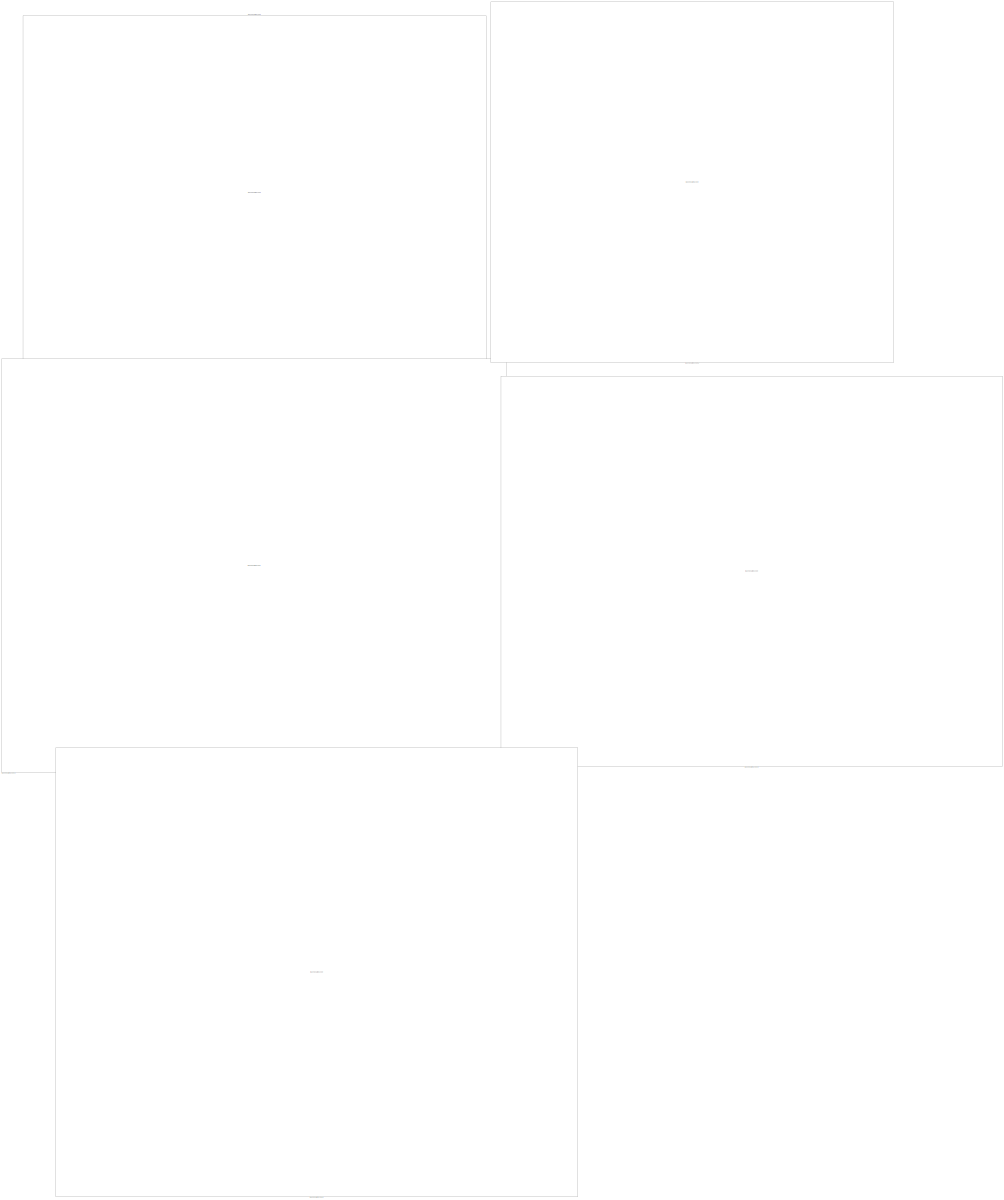
[diagram: root canvas - part 1/5, center side, full height]
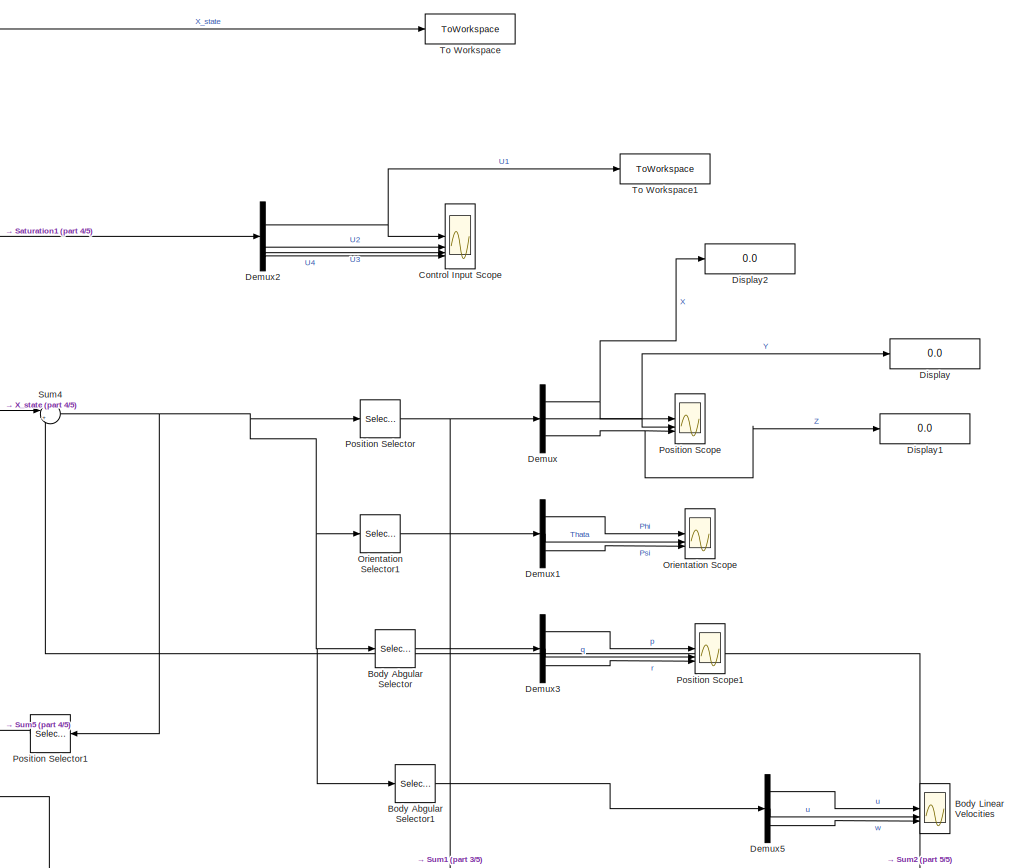
[diagram: root canvas - part 2/5, middle left region]
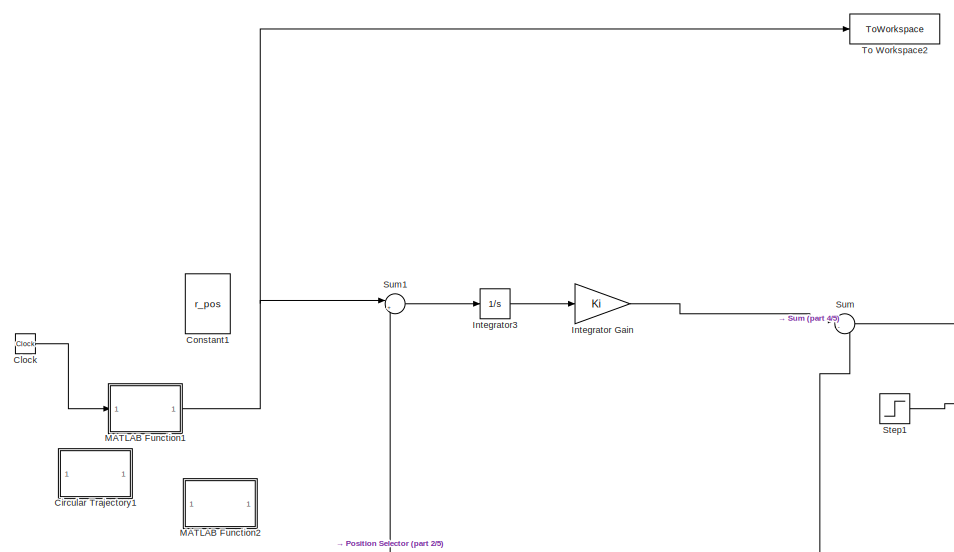
[diagram: root canvas - part 3/5, middle left region]
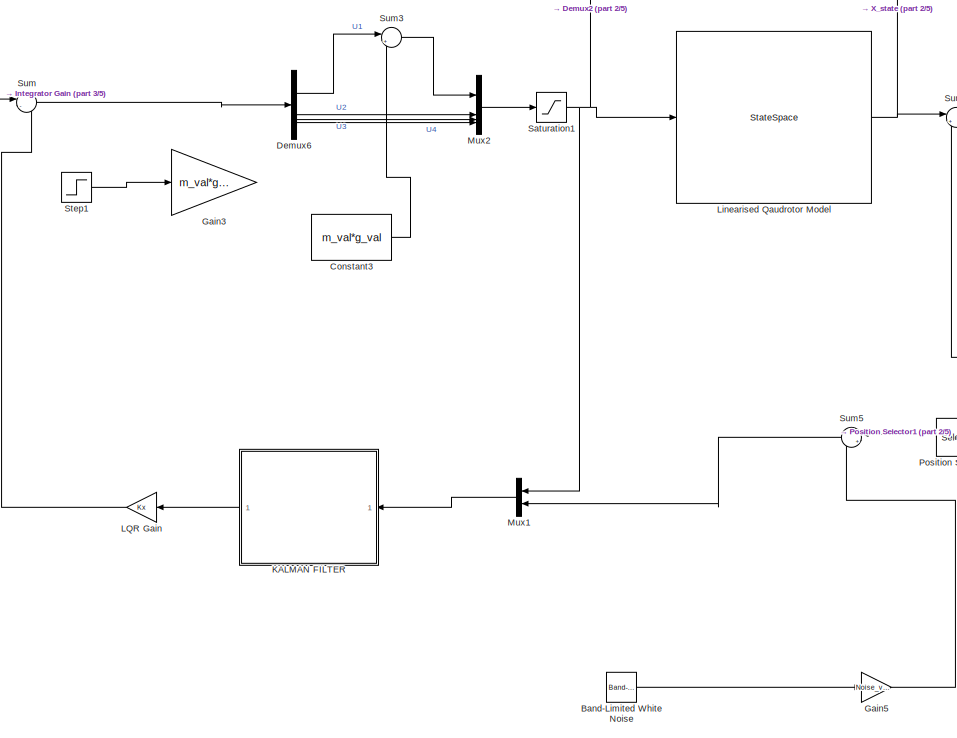
[diagram: root canvas - part 4/5, middle left region]
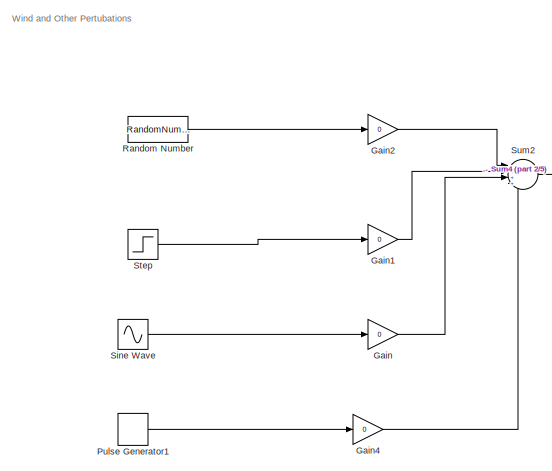
[diagram: root canvas - part 5/5, middle left region]
MODEL slx_0b3b7a8d2c96
KIND model
CONFIG AbsTol = auto
CONFIG EnableMultiTasking = off
CONFIG FixedStep = auto
CONFIG MaxStep = auto
CONFIG MinStep = auto
CONFIG RelTol = 1e-3
CONFIG SampleTimeConstraint = Unconstrained
CONFIG SolverName = VariableStepAuto
CONFIG StartTime = 0.0
CONFIG StopTime = 10.0
BLOCK [Reference] Band-Limited White Noise  REF=simulink/Sources/Band-Limited
White Noise
  SourceBlock = simulink/Sources/Band-Limited\nWhite Noise
  SourceType = Band-Limited White Noise.
BLOCK [Selector] Body Abgular Selector
  IndexOptions = Index vector (dialog)
  Indices = [10 11 12]
  InputPortWidth = 12
  OutputSizes = 1
BLOCK [Selector] Body Abgular Selector1
  IndexOptions = Index vector (dialog)
  Indices = [7 8 9]
  InputPortWidth = 12
  OutputSizes = 1
BLOCK [Scope] Body Linear Velocities
  Floating = off
  NumInputPorts = 3
  ScopeSpecificationString = Simulink.scopes.TimeScopeBlockCfg('CurrentConfiguration', extmgr.ConfigurationSet(extmgr.Configuration('Core','General UI',true),extmgr.Configuration('Core','Source UI',true),extmgr.Configuration('Sources','WiredSimulink',true,'DataLoggingVariableName','ScopeData1'),extmgr.Configuration('Visuals','Time Domain',true),extmgr.Configuration('Tools','Plot Navigation',true),extmgr.Configuration('Tools',...<+40ch>
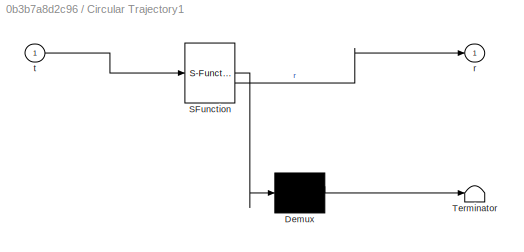
BLOCK [SubSystem] Circular Trajectory1
  ErrorFcn = Stateflow.Translate.translate
  PermitHierarchicalResolution = ExplicitOnly
  SFBlockType = MATLAB Function
  TreatAsAtomicUnit = on
BLOCK [Demux] Circular Trajectory1/ Demux 
  Outputs = 1
BLOCK [S-Function] Circular Trajectory1/ SFunction 
  EnableBusSupport = on
  FunctionName = sf_sfun
  PortCounts = [1 2]
  SFcnIsStateOwnerBlock = off
  SFunctionDeploymentMode = off
  Tag = Stateflow S-Function 2
BLOCK [Terminator] Circular Trajectory1/ Terminator 
BLOCK [Outport] Circular Trajectory1/r
BLOCK [Inport] Circular Trajectory1/t
BLOCK [Clock] Clock
BLOCK [Constant] Constant1
  Value = r_pos
  VectorParams1D = off
BLOCK [Constant] Constant3
  Value = m_val*g_val
BLOCK [Scope] Control Input Scope
  Floating = off
  NumInputPorts = 4
  ScopeSpecificationString = Simulink.scopes.TimeScopeBlockCfg('CurrentConfiguration', extmgr.ConfigurationSet(extmgr.Configuration('Core','General UI',true),extmgr.Configuration('Core','Source UI',true),extmgr.Configuration('Sources','WiredSimulink',true,'DataLoggingVariableName','ScopeData2'),extmgr.Configuration('Visuals','Time Domain',true,'SerializedDisplays',{struct('MinYLimReal','-0.03151','MaxYLimReal','0.25254','YLab...<+1494ch>
BLOCK [DashboardScope] Dashboard Scope
BLOCK [DashboardScope] Dashboard Scope1
BLOCK [DashboardScope] Dashboard Scope2
BLOCK [DashboardScope] Dashboard Scope3
BLOCK [DashboardScope] Dashboard Scope4
BLOCK [Demux] Demux
  Outputs = 3
BLOCK [Demux] Demux1
  Outputs = 3
BLOCK [Demux] Demux2
BLOCK [Demux] Demux3
  Outputs = 3
BLOCK [Demux] Demux5
  Outputs = 3
BLOCK [Demux] Demux6
BLOCK [Display] Display
  Decimation = 1
BLOCK [Display] Display1
  Decimation = 1
BLOCK [Display] Display2
  Decimation = 1
BLOCK [Gain] Gain
  Gain = 0
BLOCK [Gain] Gain1
  Gain = 0
BLOCK [Gain] Gain2
  Gain = 0
BLOCK [Gain] Gain3
  Gain = m_val*g_val
BLOCK [Gain] Gain4
  Gain = 0
BLOCK [Gain] Gain5
  Gain = Noise_vector
BLOCK [Gain] Integrator Gain
  Gain = Ki
  Multiplication = Matrix(K*u)
BLOCK [Integrator] Integrator3
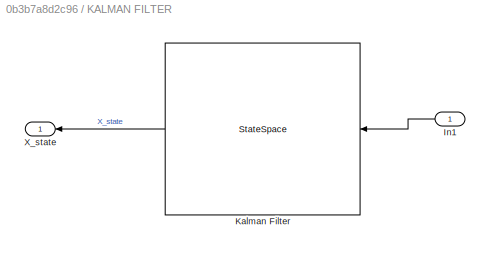
BLOCK [SubSystem] KALMAN FILTER
BLOCK [Inport] KALMAN FILTER/In1
BLOCK [StateSpace] KALMAN FILTER/Kalman Filter
  A = A_obs
  B = B_obs
  C = C_obs
  D = D_obs
  InitialCondition = x0
BLOCK [Outport] KALMAN FILTER/X_state
BLOCK [Gain] LQR Gain
  Gain = Kx
  Multiplication = Matrix(K*u)
BLOCK [StateSpace] Linearised Qaudrotor Model
  A = A_aug
  B = B_aug
  C = C_aug
  D = D_aug
  InitialCondition = 0
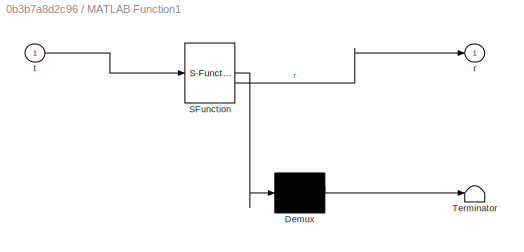
BLOCK [SubSystem] MATLAB Function1
  ErrorFcn = Stateflow.Translate.translate
  PermitHierarchicalResolution = ExplicitOnly
  SFBlockType = MATLAB Function
  TreatAsAtomicUnit = on
BLOCK [Demux] MATLAB Function1/ Demux 
  Outputs = 1
BLOCK [S-Function] MATLAB Function1/ SFunction 
  EnableBusSupport = on
  FunctionName = sf_sfun
  PortCounts = [1 2]
  SFcnIsStateOwnerBlock = off
  SFunctionDeploymentMode = off
  Tag = Stateflow S-Function 3
BLOCK [Terminator] MATLAB Function1/ Terminator 
BLOCK [Outport] MATLAB Function1/r
BLOCK [Inport] MATLAB Function1/t
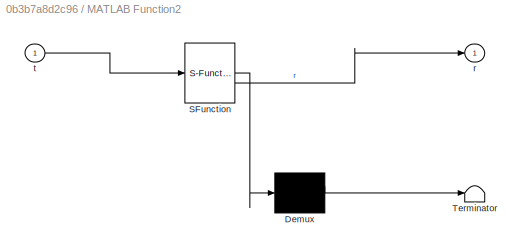
BLOCK [SubSystem] MATLAB Function2
  ErrorFcn = Stateflow.Translate.translate
  PermitHierarchicalResolution = ExplicitOnly
  SFBlockType = MATLAB Function
  TreatAsAtomicUnit = on
BLOCK [Demux] MATLAB Function2/ Demux 
  Outputs = 1
BLOCK [S-Function] MATLAB Function2/ SFunction 
  EnableBusSupport = on
  FunctionName = sf_sfun
  PortCounts = [1 2]
  SFcnIsStateOwnerBlock = off
  SFunctionDeploymentMode = off
  Tag = Stateflow S-Function 1
BLOCK [Terminator] MATLAB Function2/ Terminator 
BLOCK [Outport] MATLAB Function2/r
BLOCK [Inport] MATLAB Function2/t
BLOCK [Mux] Mux1
  DisplayOption = bar
  Inputs = 2
BLOCK [Mux] Mux2
  DisplayOption = bar
BLOCK [Scope] Orientation Scope
  Floating = off
  NumInputPorts = 3
  ScopeSpecificationString = Simulink.scopes.TimeScopeBlockCfg('CurrentConfiguration', extmgr.ConfigurationSet(extmgr.Configuration('Core','General UI',true),extmgr.Configuration('Core','Source UI',true),extmgr.Configuration('Sources','WiredSimulink',true,'DataLoggingVariableName','ScopeData3'),extmgr.Configuration('Visuals','Time Domain',true),extmgr.Configuration('Tools','Plot Navigation',true),extmgr.Configuration('Tools',...<+40ch>
BLOCK [Selector] Orientation Selector1
  IndexOptions = Index vector (dialog)
  Indices = [4 5 6]
  InputPortWidth = 12
  OutputSizes = 1
BLOCK [Scope] Position Scope
  Floating = off
  NumInputPorts = 3
  ScopeSpecificationString = Simulink.scopes.TimeScopeBlockCfg('CurrentConfiguration', extmgr.ConfigurationSet(extmgr.Configuration('Core','General UI',true),extmgr.Configuration('Core','Source UI',true),extmgr.Configuration('Sources','WiredSimulink',true,'DataLoggingVariableName','ScopeData4'),extmgr.Configuration('Visuals','Time Domain',true,'SerializedDisplays',{struct('MinYLimReal','-3.23636','MaxYLimReal','29.12723','YLa...<+1490ch>
BLOCK [Scope] Position Scope1
  Floating = off
  NumInputPorts = 3
  ScopeSpecificationString = Simulink.scopes.TimeScopeBlockCfg('CurrentConfiguration', extmgr.ConfigurationSet(extmgr.Configuration('Core','General UI',true),extmgr.Configuration('Core','Source UI',true),extmgr.Configuration('Sources','WiredSimulink',true),extmgr.Configuration('Visuals','Time Domain',true),extmgr.Configuration('Tools','Plot Navigation',true),extmgr.Configuration('Tools','Measurements',true)),'Version','2024a'...<+1ch>
BLOCK [Selector] Position Selector
  IndexOptions = Index vector (dialog)
  Indices = [1 2 3]
  InputPortWidth = 12
  OutputSizes = 1
BLOCK [Selector] Position Selector1
  IndexOptions = Index vector (dialog)
  Indices = [1 2 3 4 5 6]
  InputPortWidth = 12
  OutputSizes = 1
BLOCK [DiscretePulseGenerator] Pulse Generator1
  Period = 10
  PhaseDelay = 5
  PulseType = Time based
  PulseWidth = 20
BLOCK [RandomNumber] Random Number
  SampleTime = 0.1
  Variance = 0.5
BLOCK [Saturate] Saturation1
  LowerLimit = [-3; -0.15; -0.1; -0.5]
  UpperLimit = [30; 0.15; 0.1; 0.5]
BLOCK [Sin] Sine Wave
  Frequency = 0.5
  SampleTime = 0
BLOCK [Step] Step
  After = disturbance
  Before = zeros(12,1)
  SampleTime = 0
BLOCK [Step] Step1
  After = 1.25
  Before = 1
  SampleTime = 0
  Time = 10
BLOCK [Sum] Sum
  Inputs = |--
BLOCK [Sum] Sum1
  Inputs = |+-
BLOCK [Sum] Sum2
  Inputs = |++++
BLOCK [Sum] Sum3
  Inputs = |++
BLOCK [Sum] Sum4
  Inputs = |++
BLOCK [Sum] Sum5
  Inputs = |++
BLOCK [ToWorkspace] To Workspace
  MaxDataPoints = inf
  SampleTime = -1
  VariableName = X_states
BLOCK [ToWorkspace] To Workspace1
  FixptAsFi = on
  MaxDataPoints = inf
  SampleTime = -1
  SaveFormat = Timeseries
  VariableName = U1
BLOCK [ToWorkspace] To Workspace2
  FixptAsFi = on
  MaxDataPoints = inf
  SampleTime = -1
  SaveFormat = Timeseries
  VariableName = r_traj
ANNOTATION (root): Wind and Other Pertubations
LINE Band-Limited White Noise:1 -> Gain5:1
LINE Body Abgular Selector1:1 -> Demux5:1
LINE Body Abgular Selector:1 -> Demux3:1
LINE Clock:1 -> MATLAB Function1:1
LINE Constant3:1 -> Sum3:2
LINE Demux1:1 -> Orientation Scope:1
LINE Demux1:2 -> Orientation Scope:2
LINE Demux1:3 -> Orientation Scope:3
NET Demux2:1 -> Control Input Scope:1, To Workspace1:1
LINE Demux2:2 -> Control Input Scope:2
LINE Demux2:3 -> Control Input Scope:3
LINE Demux2:4 -> Control Input Scope:4
LINE Demux3:1 -> Position Scope1:1
LINE Demux3:2 -> Position Scope1:2
LINE Demux3:3 -> Position Scope1:3
LINE Demux5:1 -> Body Linear Velocities:1
LINE Demux5:2 -> Body Linear Velocities:2
LINE Demux5:3 -> Body Linear Velocities:3
LINE Demux6:1 -> Sum3:1
LINE Demux6:2 -> Mux2:2
LINE Demux6:3 -> Mux2:3
LINE Demux6:4 -> Mux2:4
NET Demux:1 -> Display2:1, Position Scope:1
NET Demux:2 -> Display:1, Position Scope:2
NET Demux:3 -> Display1:1, Position Scope:3
LINE Gain1:1 -> Sum2:2
LINE Gain2:1 -> Sum2:1
LINE Gain4:1 -> Sum2:4
LINE Gain5:1 -> Sum5:2
LINE Gain:1 -> Sum2:3
LINE Integrator Gain:1 -> Sum:1
LINE Integrator3:1 -> Integrator Gain:1
LINE KALMAN FILTER/In1:1 -> KALMAN FILTER/Kalman Filter:1
LINE KALMAN FILTER/Kalman Filter:1 -> KALMAN FILTER/X_state:1
LINE KALMAN FILTER:1 -> LQR Gain:1
LINE LQR Gain:1 -> Sum:2
NET Linearised Qaudrotor Model:1 -> Sum4:1, To Workspace:1
NET MATLAB Function1:1 -> Sum1:1, To Workspace2:1
LINE Mux1:1 -> KALMAN FILTER:1
LINE Mux2:1 -> Saturation1:1
LINE Orientation Selector1:1 -> Demux1:1
LINE Position Selector1:1 -> Sum5:1
NET Position Selector:1 -> Demux:1, Sum1:2
LINE Pulse Generator1:1 -> Gain4:1
LINE Random Number:1 -> Gain2:1
NET Saturation1:1 -> Demux2:1, Linearised Qaudrotor Model:1, Mux1:1
LINE Sine Wave:1 -> Gain:1
LINE Step1:1 -> Gain3:1
LINE Step:1 -> Gain1:1
LINE Sum1:1 -> Integrator3:1
LINE Sum2:1 -> Sum4:2
LINE Sum3:1 -> Mux2:1
NET Sum4:1 -> Body Abgular Selector1:1, Body Abgular Selector:1, Orientation Selector1:1, Position Selector1:1, Position Selector:1
LINE Sum5:1 -> Mux1:2
LINE Sum:1 -> Demux6:1
note: NET lines group one-source signal fan-out (src -> all destinations, sorted); 1:1 wires keep LINE
CHART Circular Trajectory1 states=1 transitions=1
  STATE_LABEL 'eML_blk_kernel()'
  STATE_LABEL 'SCRIPT:\n\n\nfunction r = trajectory(t)\n\n% Parameters (you can also pass these in or make them tunable)\nR = 5;           % Radius of circle (meters)\nomega = 0.1;     % Angular frequency (rad/s)\nz0 = 10;         % Base altitude (meters)\nA = 2;           % Amplitude of vertical oscillation (meters)\nomega_z = 0.05;  % Vertical oscillation frequency (rad/s)\n\n% Reference trajectory components\nr_x = R * co...<+149ch>'
CHART MATLAB Function1 states=1 transitions=1
  STATE_LABEL 'eML_blk_kernel()'
  STATE_LABEL 'SCRIPT:\nfunction r = rect_trajectory(t)\n\n% Parameters\nL = 10;        % Length of rectangle (x-direction)\nW = 5;         % Width of rectangle (y-direction)\nz0 = 10;       % Fixed height\nT_side = 5;    % Time to complete one side\nT_cycle = 4 * T_side;\n\n% Normalize time to current phase\nt_mod = mod(t, T_cycle);\n\n% Initialize reference\nx = 0;\ny = 0;\n\nif t_mod < T_side\n    % Move right (+x)\n    x = L *...<+394ch>'
CHART MATLAB Function2 states=1 transitions=1
  STATE_LABEL 'eML_blk_kernel()'
  STATE_LABEL 'SCRIPT:\nfunction r = rect_trajectory(t)\n\n% Parameters\nL = 10;        % Length of rectangle (x-direction)\nW = 5;         % Width of rectangle (y-direction)\nz0 = 10;       % Fixed height\nT_side = 5;    % Time to complete one side\nT_cycle = 4 * T_side;\n\n% Normalize time to current phase\nt_mod = mod(t, T_cycle);\n\n% Initialize reference\nx = 0;\ny = 0;\n\nif t_mod < T_side\n    % Move right (+x)\n    x = L *...<+394ch>'
CHART  states=0 transitions=0
CHART  states=0 transitions=0
CHART  states=0 transitions=0
